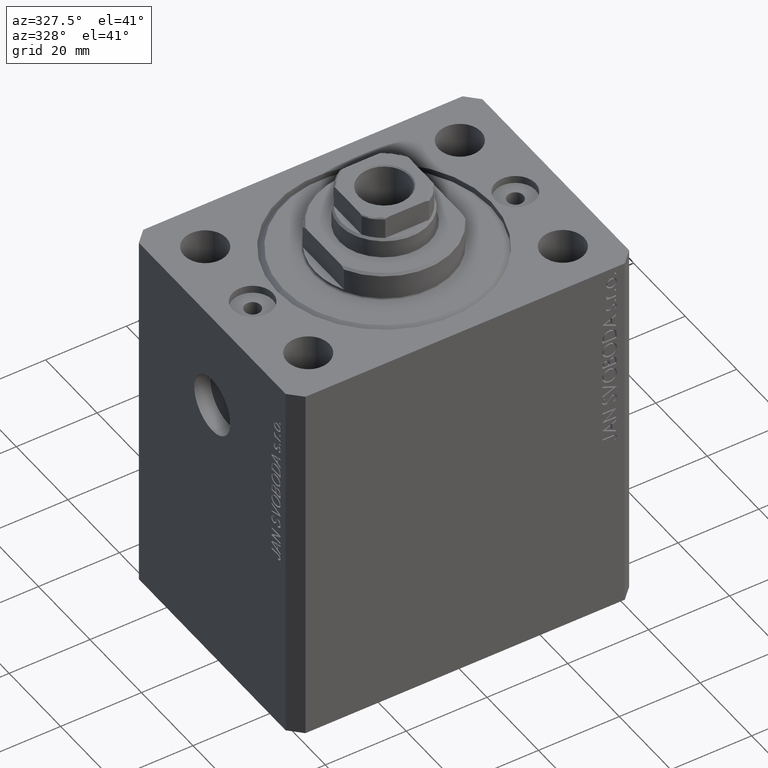
[diagram: clean part render]
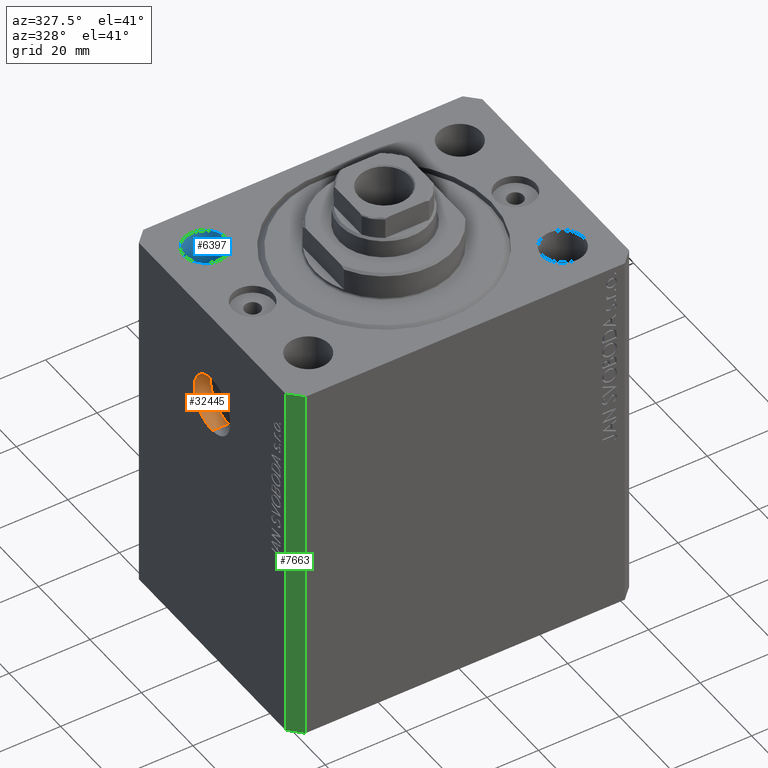
[diagram: same view with three faces highlighted in distinct colors, each labeled with its STEP entity id]
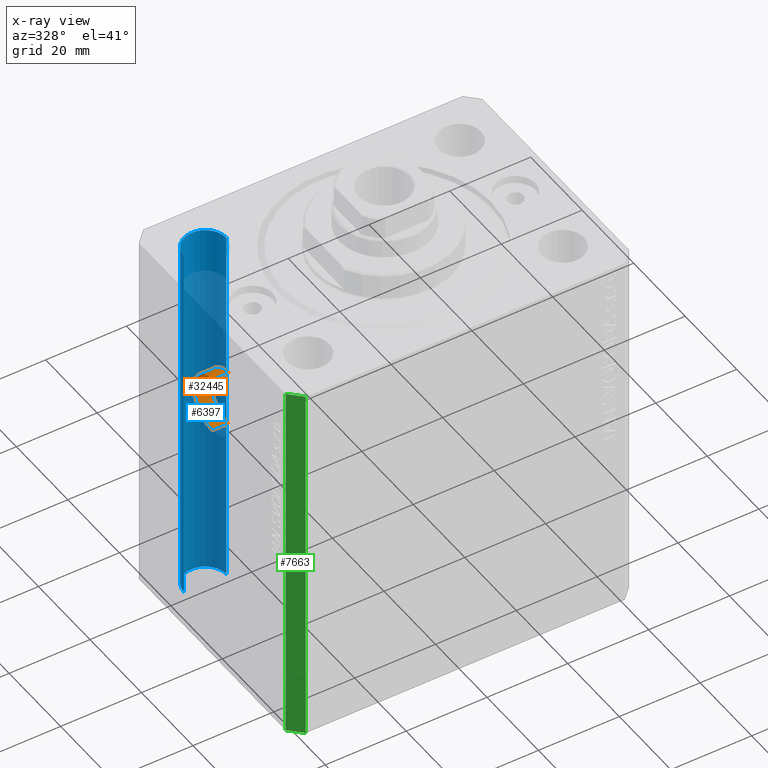
[diagram: x-ray of the same camera — body ghosted, the three highlighted faces saturated]
A machine part, auxiliary view with three faces highlighted in distinct colors.
The next image is the same camera in x-ray (body ghosted, the three faces saturated) — at least one of them is partly hidden behind the body in this view.
Their STEP definitions:

[orange] entity #32445 — the highlighted cylindrical surface (edge-blend (fillet) strip) has radius 7 mm, axis along (-1, -0, -0).
#4166 = VERTEX_POINT ( 'NONE', #34520 ) ;
#4668 = CIRCLE ( 'NONE', #19055, 6.999999999999999112 ) ;
#4980 = ORIENTED_EDGE ( 'NONE', *, *, #30822, .F. ) ;
#10533 = AXIS2_PLACEMENT_3D ( 'NONE', #40256, #26543, #19583 ) ;
#14037 = EDGE_CURVE ( 'NONE', #4166, #32106, #17971, .T. ) ;
#14243 = CARTESIAN_POINT ( 'NONE',  ( -38.50000000000000711, 0.000000000000000000, -16.99999999999999645 ) ) ;
#15682 = ORIENTED_EDGE ( 'NONE', *, *, #28028, .F. ) ;
#16010 = ORIENTED_EDGE ( 'NONE', *, *, #14037, .T. ) ;
#17971 = CIRCLE ( 'NONE', #43115, 6.999999999999999112 ) ;
#19055 = AXIS2_PLACEMENT_3D ( 'NONE', #23740, #40573, #37438 ) ;
#19583 = DIRECTION ( 'NONE',  ( 0.000000000000000000, 0.000000000000000000, 1.000000000000000000 ) ) ;
#20547 = CARTESIAN_POINT ( 'NONE',  ( -38.50000000000000711, 8.572527594031474176E-16, -31.00000000000000000 ) ) ;
#20757 = DIRECTION ( 'NONE',  ( -1.000000000000000000, -0.000000000000000000, -0.000000000000000000 ) ) ;
#22725 = FACE_OUTER_BOUND ( 'NONE', #32389, .T. ) ;
#22857 = VERTEX_POINT ( 'NONE', #20547 ) ;
#23740 = CARTESIAN_POINT ( 'NONE',  ( -38.50000000000000711, 0.000000000000000000, -23.99999999999999645 ) ) ;
#23919 = CARTESIAN_POINT ( 'NONE',  ( -42.50000000000000000, 8.572527594031474176E-16, -31.00000000000000000 ) ) ;
#24810 = EDGE_CURVE ( 'NONE', #29116, #4166, #25193, .T. ) ;
#25193 = LINE ( 'NONE', #39102, #34982 ) ;
#26543 = DIRECTION ( 'NONE',  ( -1.000000000000000000, -0.000000000000000000, -0.000000000000000000 ) ) ;
#27585 = DIRECTION ( 'NONE',  ( 0.000000000000000000, 0.000000000000000000, 1.000000000000000000 ) ) ;
#28028 = EDGE_CURVE ( 'NONE', #29116, #22857, #4668, .T. ) ;
#29116 = VERTEX_POINT ( 'NONE', #14243 ) ;
#30039 = LINE ( 'NONE', #33404, #31305 ) ;
#30822 = EDGE_CURVE ( 'NONE', #22857, #32106, #30039, .T. ) ;
#31305 = VECTOR ( 'NONE', #20757, 1000.000000000000000 ) ;
#31811 = ORIENTED_EDGE ( 'NONE', *, *, #24810, .T. ) ;
#32106 = VERTEX_POINT ( 'NONE', #23919 ) ;
#32389 = EDGE_LOOP ( 'NONE', ( #4980, #15682, #31811, #16010 ) ) ;
#32445 = ADVANCED_FACE ( 'NONE', ( #22725 ), #36870, .F. ) ;
#33404 = CARTESIAN_POINT ( 'NONE',  ( -38.50000000000000711, 8.572527594031473190E-16, -30.99999999999999645 ) ) ;
#34520 = CARTESIAN_POINT ( 'NONE',  ( -42.50000000000000000, 0.000000000000000000, -16.99999999999999645 ) ) ;
#34982 = VECTOR ( 'NONE', #41814, 1000.000000000000000 ) ;
#36870 = CYLINDRICAL_SURFACE ( 'NONE', #10533, 6.999999999999999112 ) ;
#37438 = DIRECTION ( 'NONE',  ( 0.000000000000000000, 0.000000000000000000, 1.000000000000000000 ) ) ;
#37697 = CARTESIAN_POINT ( 'NONE',  ( -42.50000000000000000, 0.000000000000000000, -23.99999999999999645 ) ) ;
#39102 = CARTESIAN_POINT ( 'NONE',  ( -38.50000000000000711, 0.000000000000000000, -16.99999999999999645 ) ) ;
#40256 = CARTESIAN_POINT ( 'NONE',  ( -38.50000000000000711, 0.000000000000000000, -23.99999999999999645 ) ) ;
#40573 = DIRECTION ( 'NONE',  ( -1.000000000000000000, 0.000000000000000000, 0.000000000000000000 ) ) ;
#40852 = DIRECTION ( 'NONE',  ( -1.000000000000000000, 0.000000000000000000, 0.000000000000000000 ) ) ;
#41814 = DIRECTION ( 'NONE',  ( -1.000000000000000000, -0.000000000000000000, -0.000000000000000000 ) ) ;
#43115 = AXIS2_PLACEMENT_3D ( 'NONE', #37697, #40852, #27585 ) ;

[blue] entity #6397 — the highlighted cylindrical surface (edge-blend (fillet) strip) has radius 5.25 mm, axis along (0, 0, 1).
#41 = DIRECTION ( 'NONE',  ( -0.000000000000000000, -0.000000000000000000, 1.000000000000000000 ) ) ;
#64 = EDGE_CURVE ( 'NONE', #8706, #34757, #12931, .T. ) ;
#1386 = CIRCLE ( 'NONE', #36555, 5.250000000000000888 ) ;
#1744 = DIRECTION ( 'NONE',  ( 1.000000000000000000, 0.000000000000000000, 0.000000000000000000 ) ) ;
#2760 = CARTESIAN_POINT ( 'NONE',  ( -31.50000000000000000, 19.99999999999999645, 0.000000000000000000 ) ) ;
#4123 = ORIENTED_EDGE ( 'NONE', *, *, #25286, .T. ) ;
#6397 = ADVANCED_FACE ( 'NONE', ( #28422 ), #37879, .F. ) ;
#7020 = DIRECTION ( 'NONE',  ( 0.000000000000000000, 0.000000000000000000, 1.000000000000000000 ) ) ;
#7425 = VECTOR ( 'NONE', #33382, 1000.000000000000000 ) ;
#7704 = AXIS2_PLACEMENT_3D ( 'NONE', #14513, #17861, #31361 ) ;
#8706 = VERTEX_POINT ( 'NONE', #24076 ) ;
#10083 = CARTESIAN_POINT ( 'NONE',  ( -36.75000000000000000, 19.99999999999999645, 0.000000000000000000 ) ) ;
#10492 = AXIS2_PLACEMENT_3D ( 'NONE', #35916, #29622, #1744 ) ;
#12145 = ORIENTED_EDGE ( 'NONE', *, *, #64, .T. ) ;
#12931 = LINE ( 'NONE', #37198, #7425 ) ;
#13629 = CARTESIAN_POINT ( 'NONE',  ( -26.25000000000000000, 19.99999999999999645, 0.000000000000000000 ) ) ;
#14513 = CARTESIAN_POINT ( 'NONE',  ( -31.50000000000000000, 19.99999999999999645, -107.8492424049175042 ) ) ;
#17778 = LINE ( 'NONE', #35077, #22274 ) ;
#17861 = DIRECTION ( 'NONE',  ( -0.000000000000000000, -0.000000000000000000, 1.000000000000000000 ) ) ;
#19937 = EDGE_LOOP ( 'NONE', ( #35405, #4123, #12145, #41813 ) ) ;
#22274 = VECTOR ( 'NONE', #41, 1000.000000000000000 ) ;
#23860 = VERTEX_POINT ( 'NONE', #32446 ) ;
#24076 = CARTESIAN_POINT ( 'NONE',  ( -26.25000000000000000, 19.99999999999999645, -93.00000000000000000 ) ) ;
#25286 = EDGE_CURVE ( 'NONE', #23860, #8706, #34193, .T. ) ;
#28422 = FACE_OUTER_BOUND ( 'NONE', #19937, .T. ) ;
#29622 = DIRECTION ( 'NONE',  ( -0.000000000000000000, -0.000000000000000000, -1.000000000000000000 ) ) ;
#30639 = DIRECTION ( 'NONE',  ( 1.000000000000000000, 0.000000000000000000, 0.000000000000000000 ) ) ;
#31361 = DIRECTION ( 'NONE',  ( 1.000000000000000000, 0.000000000000000000, 0.000000000000000000 ) ) ;
#32446 = CARTESIAN_POINT ( 'NONE',  ( -36.75000000000000000, 19.99999999999999645, -93.00000000000000000 ) ) ;
#33382 = DIRECTION ( 'NONE',  ( -0.000000000000000000, -0.000000000000000000, 1.000000000000000000 ) ) ;
#34193 = CIRCLE ( 'NONE', #10492, 5.250000000000000888 ) ;
#34757 = VERTEX_POINT ( 'NONE', #13629 ) ;
#35077 = CARTESIAN_POINT ( 'NONE',  ( -36.75000000000000000, 19.99999999999999645, -107.8492424049175042 ) ) ;
#35405 = ORIENTED_EDGE ( 'NONE', *, *, #40846, .F. ) ;
#35916 = CARTESIAN_POINT ( 'NONE',  ( -31.50000000000000000, 19.99999999999999645, -93.00000000000000000 ) ) ;
#36555 = AXIS2_PLACEMENT_3D ( 'NONE', #2760, #7020, #30639 ) ;
#37198 = CARTESIAN_POINT ( 'NONE',  ( -26.25000000000000000, 19.99999999999999645, -107.8492424049175042 ) ) ;
#37805 = EDGE_CURVE ( 'NONE', #34757, #43554, #1386, .T. ) ;
#37879 = CYLINDRICAL_SURFACE ( 'NONE', #7704, 5.250000000000000888 ) ;
#40846 = EDGE_CURVE ( 'NONE', #23860, #43554, #17778, .T. ) ;
#41813 = ORIENTED_EDGE ( 'NONE', *, *, #37805, .T. ) ;
#43554 = VERTEX_POINT ( 'NONE', #10083 ) ;

[green] entity #7663 — the highlighted planar face has unit normal (-0.7071, -0.7071, 0).
#1157 = LINE ( 'NONE', #22316, #24410 ) ;
#1728 = CARTESIAN_POINT ( 'NONE',  ( -42.50000000000000000, -28.50000000000000000, -93.00000000000000000 ) ) ;
#2870 = VECTOR ( 'NONE', #15772, 1000.000000000000000 ) ;
#5700 = LINE ( 'NONE', #29978, #14725 ) ;
#6796 = VERTEX_POINT ( 'NONE', #30878 ) ;
#7533 = CARTESIAN_POINT ( 'NONE',  ( -39.50000000000000711, -31.50000000000000000, -93.00000000000000000 ) ) ;
#7663 = ADVANCED_FACE ( 'NONE', ( #36121 ), #32534, .T. ) ;
#9002 = CARTESIAN_POINT ( 'NONE',  ( -42.50000000000000000, -28.50000000000000000, 0.000000000000000000 ) ) ;
#9356 = DIRECTION ( 'NONE',  ( -0.7071067811865479058, -0.7071067811865471286, 0.000000000000000000 ) ) ;
#9793 = CARTESIAN_POINT ( 'NONE',  ( -42.50000000000000000, -28.50000000000000000, -93.00000000000000000 ) ) ;
#10021 = DIRECTION ( 'NONE',  ( 0.000000000000000000, 0.000000000000000000, 1.000000000000000000 ) ) ;
#10314 = CARTESIAN_POINT ( 'NONE',  ( -42.50000000000000000, -28.50000000000000000, -93.00000000000000000 ) ) ;
#10579 = ORIENTED_EDGE ( 'NONE', *, *, #27532, .T. ) ;
#12406 = EDGE_CURVE ( 'NONE', #6796, #31716, #37324, .T. ) ;
#14725 = VECTOR ( 'NONE', #40082, 1000.000000000000000 ) ;
#15453 = DIRECTION ( 'NONE',  ( 0.7071067811865471286, -0.7071067811865479058, 0.000000000000000000 ) ) ;
#15772 = DIRECTION ( 'NONE',  ( 0.7071067811865471286, -0.7071067811865479058, 0.000000000000000000 ) ) ;
#19794 = VECTOR ( 'NONE', #10021, 1000.000000000000000 ) ;
#21819 = VERTEX_POINT ( 'NONE', #7533 ) ;
#22316 = CARTESIAN_POINT ( 'NONE',  ( -39.50000000000000711, -31.50000000000000000, -93.00000000000000000 ) ) ;
#22491 = ORIENTED_EDGE ( 'NONE', *, *, #39891, .T. ) ;
#23038 = ORIENTED_EDGE ( 'NONE', *, *, #28867, .F. ) ;
#24410 = VECTOR ( 'NONE', #42972, 1000.000000000000000 ) ;
#26014 = CARTESIAN_POINT ( 'NONE',  ( -39.50000000000000711, -31.50000000000000000, 0.000000000000000000 ) ) ;
#27532 = EDGE_CURVE ( 'NONE', #35415, #21819, #5700, .T. ) ;
#28867 = EDGE_CURVE ( 'NONE', #35415, #6796, #40582, .T. ) ;
#29978 = CARTESIAN_POINT ( 'NONE',  ( -42.50000000000000000, -28.50000000000000000, -93.00000000000000000 ) ) ;
#30878 = CARTESIAN_POINT ( 'NONE',  ( -42.50000000000000000, -28.50000000000000000, 0.000000000000000000 ) ) ;
#31716 = VERTEX_POINT ( 'NONE', #26014 ) ;
#32534 = PLANE ( 'NONE',  #35006 ) ;
#35006 = AXIS2_PLACEMENT_3D ( 'NONE', #1728, #9356, #15453 ) ;
#35415 = VERTEX_POINT ( 'NONE', #10314 ) ;
#36121 = FACE_OUTER_BOUND ( 'NONE', #39566, .T. ) ;
#36744 = ORIENTED_EDGE ( 'NONE', *, *, #12406, .F. ) ;
#37324 = LINE ( 'NONE', #9002, #2870 ) ;
#39566 = EDGE_LOOP ( 'NONE', ( #36744, #23038, #10579, #22491 ) ) ;
#39891 = EDGE_CURVE ( 'NONE', #21819, #31716, #1157, .T. ) ;
#40082 = DIRECTION ( 'NONE',  ( 0.7071067811865471286, -0.7071067811865479058, 0.000000000000000000 ) ) ;
#40582 = LINE ( 'NONE', #9793, #19794 ) ;
#42972 = DIRECTION ( 'NONE',  ( 0.000000000000000000, 0.000000000000000000, 1.000000000000000000 ) ) ;